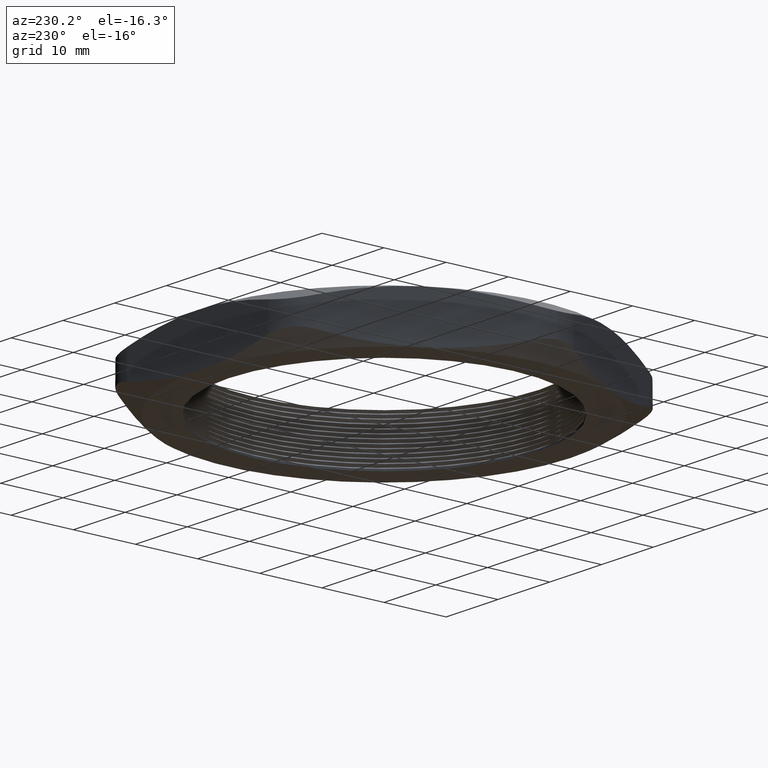
[diagram: clean part render]
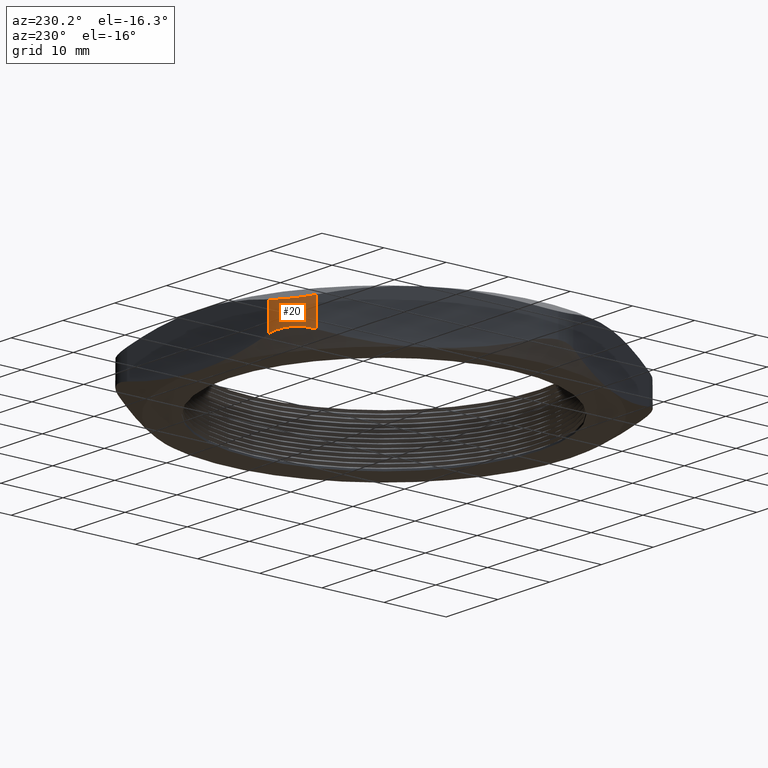
[diagram: same view with one face highlighted and labeled with its STEP entity id]
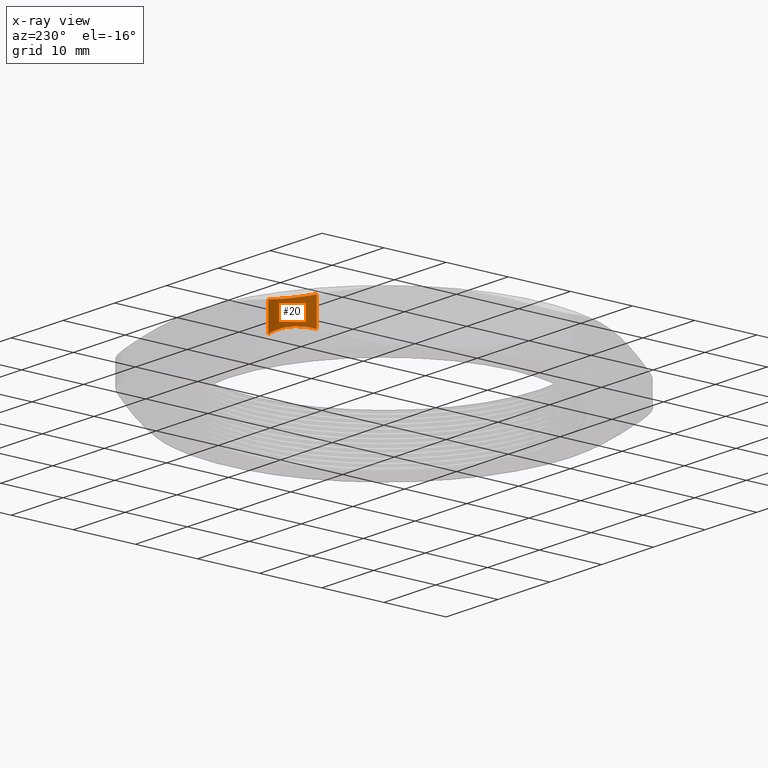
[diagram: x-ray of the same camera — body ghosted, the highlighted face saturated]
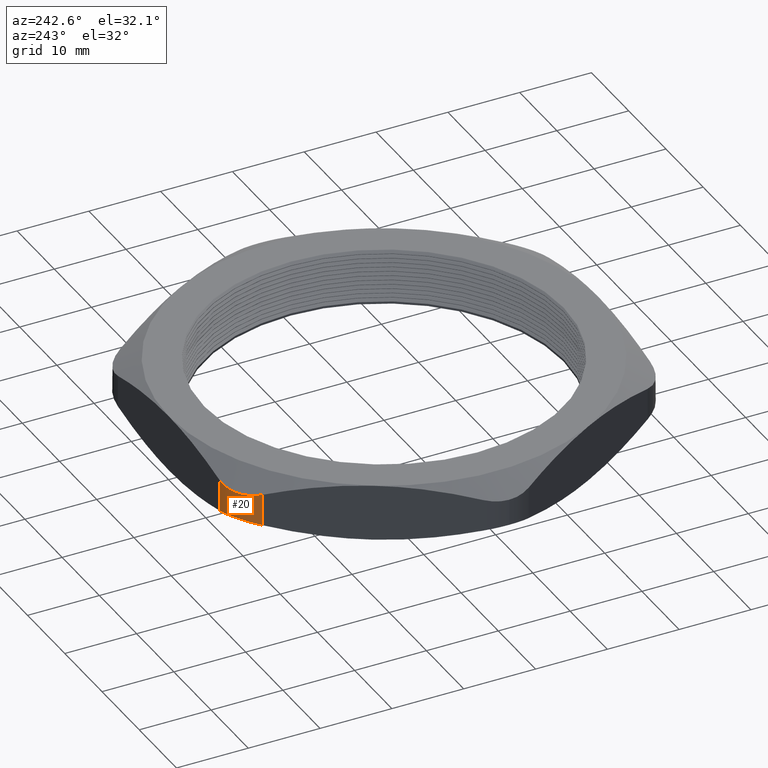
[diagram: same view with one face highlighted and labeled with its STEP entity id]
A machine part, auxiliary view. The second image highlights one B-rep face of the part: STEP entity #20.
The next image is the same camera in x-ray: the body ghosted, the highlighted face saturated — about 0% of this face is hidden behind the body in this view.
A second angle (auxiliary view) of the same face is appended — the face is thin or edge-on in the first view.
In plain terms, the highlighted cylindrical surface (partial cylindrical patch) has radius 6.35 mm, axis along (0, 0, -1).
Its self-contained STEP definition (entity closure, byte-faithful):
#15 = ORIENTED_EDGE ( 'NONE', *, *, #213, .F. ) ;
#16 = ORIENTED_EDGE ( 'NONE', *, *, #2629, .F. ) ;
#17 = ORIENTED_EDGE ( 'NONE', *, *, #286, .F. ) ;
#18 = ORIENTED_EDGE ( 'NONE', *, *, #2627, .F. ) ;
#19 = EDGE_LOOP ( 'NONE', ( #18, #17, #16, #15 ) ) ;
#20 = ADVANCED_FACE ( 'NONE', ( #352 ), #414, .T. ) ;
#211 = VERTEX_POINT ( 'NONE', #729 ) ;
#213 = EDGE_CURVE ( 'NONE', #211, #214, #782, .T. ) ;
#214 = VERTEX_POINT ( 'NONE', #778 ) ;
#286 = EDGE_CURVE ( 'NONE', #597, #287, #959, .T. ) ;
#287 = VERTEX_POINT ( 'NONE', #955 ) ;
#352 = FACE_OUTER_BOUND ( 'NONE', #19, .T. ) ;
#356 = CARTESIAN_POINT ( 'NONE',  ( -0.5369357503463517700, 0.9300000000000001600, 0.3100000000000000000 ) ) ;
#411 = DIRECTION ( 'NONE',  ( -1.000000000000000000, 0.0000000000000000000, 0.0000000000000000000 ) ) ;
#412 = DIRECTION ( 'NONE',  ( 0.0000000000000000000, 0.0000000000000000000, -1.000000000000000000 ) ) ;
#413 = AXIS2_PLACEMENT_3D ( 'NONE', #356, #412, #411 ) ;
#414 = CYLINDRICAL_SURFACE ( 'NONE', #413, 0.2500000000000000600 ) ;
#597 = VERTEX_POINT ( 'NONE', #1096 ) ;
#729 = CARTESIAN_POINT ( 'NONE',  ( -0.7534421012924613600, 1.055000000000000200, 0.2427859541343049300 ) ) ;
#778 = CARTESIAN_POINT ( 'NONE',  ( -0.7534421012924613600, 1.055000000000000200, 0.06721404586569491900 ) ) ;
#779 = DIRECTION ( 'NONE',  ( 0.0000000000000000000, 0.0000000000000000000, -1.000000000000000000 ) ) ;
#780 = VECTOR ( 'NONE', #779, 39.37007874015748100 ) ;
#781 = CARTESIAN_POINT ( 'NONE',  ( -0.7534421012924613600, 1.055000000000000200, 0.3100000000000000000 ) ) ;
#782 = LINE ( 'NONE', #781, #780 ) ;
#955 = CARTESIAN_POINT ( 'NONE',  ( -0.5369357503463516600, 1.180000000000000200, 0.2427859541343048700 ) ) ;
#956 = DIRECTION ( 'NONE',  ( 0.0000000000000000000, 0.0000000000000000000, 1.000000000000000000 ) ) ;
#957 = VECTOR ( 'NONE', #956, 39.37007874015748100 ) ;
#958 = CARTESIAN_POINT ( 'NONE',  ( -0.5369357503463517700, 1.180000000000000200, 0.3100000000000000000 ) ) ;
#959 = LINE ( 'NONE', #958, #957 ) ;
#1096 = CARTESIAN_POINT ( 'NONE',  ( -0.5369357503463516600, 1.180000000000000200, 0.06721404586569512700 ) ) ;
#1612 = CARTESIAN_POINT ( 'NONE',  ( -0.6221819559806109900, 1.165272639550648700, 0.2286349243502648300 ) ) ;
#1613 = CARTESIAN_POINT ( 'NONE',  ( -0.6116474606707502600, 1.168826090778309500, 0.2296625828566580800 ) ) ;
#1614 = CARTESIAN_POINT ( 'NONE',  ( -0.5799181923317210400, 1.177247800526430600, 0.2336981853431921700 ) ) ;
#1615 = CARTESIAN_POINT ( 'NONE',  ( -0.5585335758802318900, 1.180000000000000200, 0.2376214738663903800 ) ) ;
#1616 = CARTESIAN_POINT ( 'NONE',  ( -0.5369357503463516600, 1.180000000000000200, 0.2427859541343048700 ) ) ;
#1617 = B_SPLINE_CURVE_WITH_KNOTS ( 'NONE', 3,
 ( #1662, #1661, #1660, #1659, #1658, #1657, #1656, #1655, #1654, #1653, #1652, #1651, #1650, #1649 ),
 .UNSPECIFIED., .F., .F.,
 ( 4, 2, 2, 2, 2, 2, 4 ),
 ( 0.0000000000000000000, 0.001669271586080334800, 0.002503907379120498500, 0.003338543172160662300, 0.004173178965200826000, 0.005007814758240989300, 0.006677086344321324500 ),
 .UNSPECIFIED. ) ;
#1618 = B_SPLINE_CURVE_WITH_KNOTS ( 'NONE', 3,
 ( #1616, #1615, #1614, #1613, #1612, #1676, #1675, #1674, #1673, #1672, #1671, #1670, #1669, #1668 ),
 .UNSPECIFIED., .F., .F.,
 ( 4, 2, 2, 2, 2, 2, 4 ),
 ( 1.734723475976807100E-018, 0.001669271586080333100, 0.002503907379120499000, 0.003338543172160664400, 0.004173178965200829500, 0.005007814758240996200, 0.006677086344321325400 ),
 .UNSPECIFIED. ) ;
#1649 = CARTESIAN_POINT ( 'NONE',  ( -0.5369357503463516600, 1.180000000000000200, 0.06721404586569512700 ) ) ;
#1650 = CARTESIAN_POINT ( 'NONE',  ( -0.5585386968758957500, 1.180000000000000600, 0.07237975066804328000 ) ) ;
#1651 = CARTESIAN_POINT ( 'NONE',  ( -0.5803717184231755900, 1.177156764165109500, 0.07637160150552654800 ) ) ;
#1652 = CARTESIAN_POINT ( 'NONE',  ( -0.6118967407510946800, 1.168744920922675900, 0.08036293289793387800 ) ) ;
#1653 = CARTESIAN_POINT ( 'NONE',  ( -0.6222508287803747400, 1.165250896099423000, 0.08137240177445195800 ) ) ;
#1654 = CARTESIAN_POINT ( 'NONE',  ( -0.6426363754475586900, 1.156823774276417600, 0.08272984357175608400 ) ) ;
#1655 = CARTESIAN_POINT ( 'NONE',  ( -0.6526144673638901700, 1.151897965371904100, 0.08306829295617795800 ) ) ;
#1656 = CARTESIAN_POINT ( 'NONE',  ( -0.6716009541221924500, 1.140915991567794000, 0.08306013245854908200 ) ) ;
#1657 = CARTESIAN_POINT ( 'NONE',  ( -0.6806907329805711400, 1.134828307281984900, 0.08271979029129168700 ) ) ;
#1658 = CARTESIAN_POINT ( 'NONE',  ( -0.6980647301955034100, 1.121461699430825100, 0.08136507564973519100 ) ) ;
#1659 = CARTESIAN_POINT ( 'NONE',  ( -0.7064093568846974100, 1.114115284490268200, 0.08033741714334197100 ) ) ;
#1660 = CARTESIAN_POINT ( 'NONE',  ( -0.7295674056393837100, 1.090847786939236100, 0.07630181465680781200 ) ) ;
#1661 = CARTESIAN_POINT ( 'NONE',  ( -0.7426431885255212500, 1.073704265578844700, 0.07237852613360942800 ) ) ;
#1662 = CARTESIAN_POINT ( 'NONE',  ( -0.7534421012924613600, 1.055000000000000200, 0.06721404586569491900 ) ) ;
#1668 = CARTESIAN_POINT ( 'NONE',  ( -0.7534421012924613600, 1.055000000000000200, 0.2427859541343049300 ) ) ;
#1669 = CARTESIAN_POINT ( 'NONE',  ( -0.7426406280276900400, 1.073708700491183200, 0.2376202493319566100 ) ) ;
#1670 = CARTESIAN_POINT ( 'NONE',  ( -0.7292618027920841900, 1.091195033875054500, 0.2336283984944734500 ) ) ;
#1671 = CARTESIAN_POINT ( 'NONE',  ( -0.7062144216875244600, 1.114290582444687400, 0.2296370671020661100 ) ) ;
#1672 = CARTESIAN_POINT ( 'NONE',  ( -0.6980114634144939400, 1.121510473299437900, 0.2286275982255480700 ) ) ;
#1673 = CARTESIAN_POINT ( 'NONE',  ( -0.6805205885013931900, 1.134951313671749100, 0.2272701564282439100 ) ) ;
#1674 = CARTESIAN_POINT ( 'NONE',  ( -0.6712656668977307100, 1.141129690300331400, 0.2269317070438219600 ) ) ;
#1675 = CARTESIAN_POINT ( 'NONE',  ( -0.6522617552205255400, 1.152081483259583200, 0.2269398675414507600 ) ) ;
#1676 = CARTESIAN_POINT ( 'NONE',  ( -0.6424447765496056300, 1.156909620522817300, 0.2272802097087083000 ) ) ;
#2627 = EDGE_CURVE ( 'NONE', #287, #211, #1618, .T. ) ;
#2629 = EDGE_CURVE ( 'NONE', #214, #597, #1617, .T. ) ;